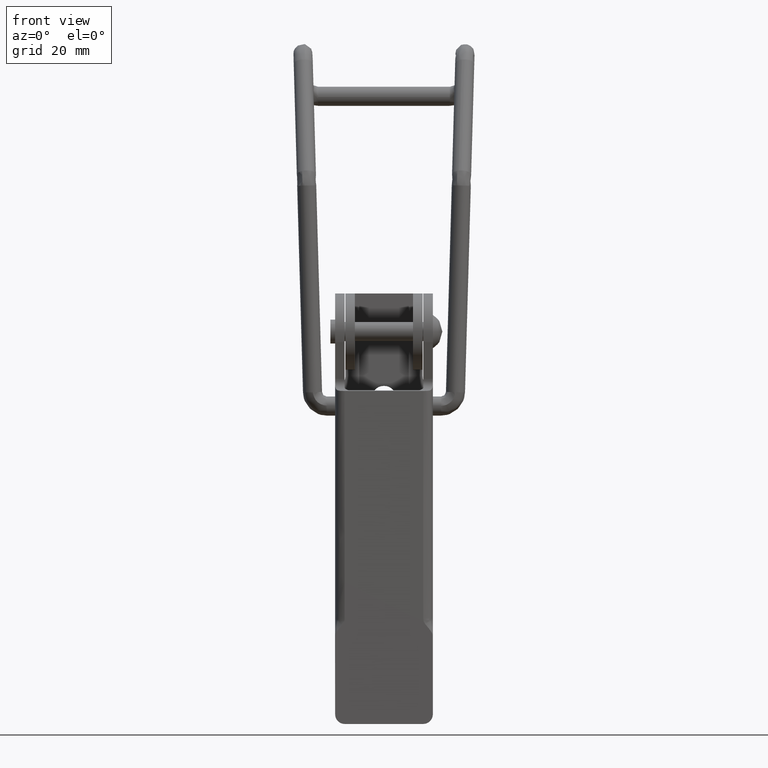
[diagram: clean part render]
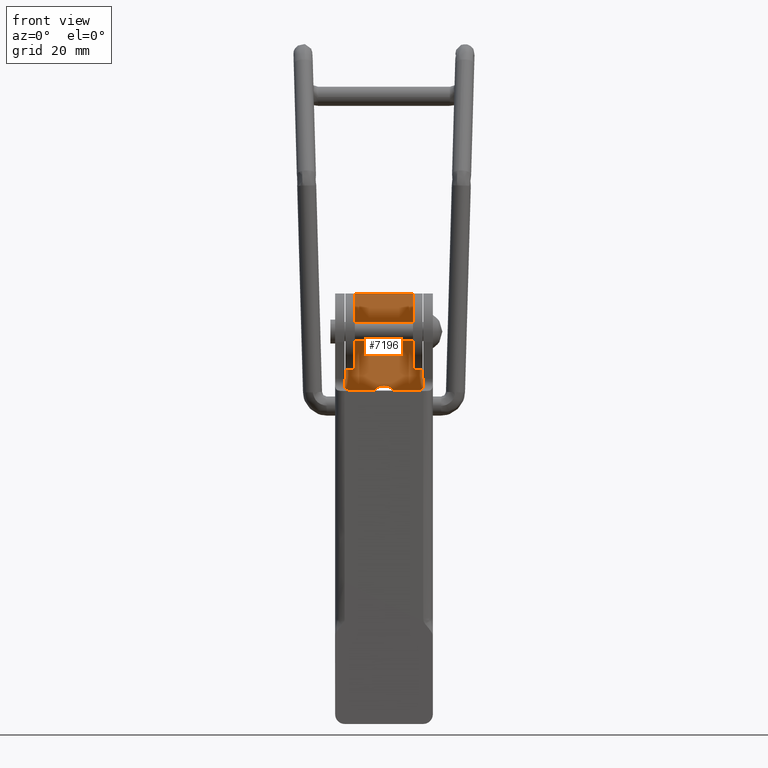
[diagram: same view with one face highlighted and labeled with its STEP entity id]
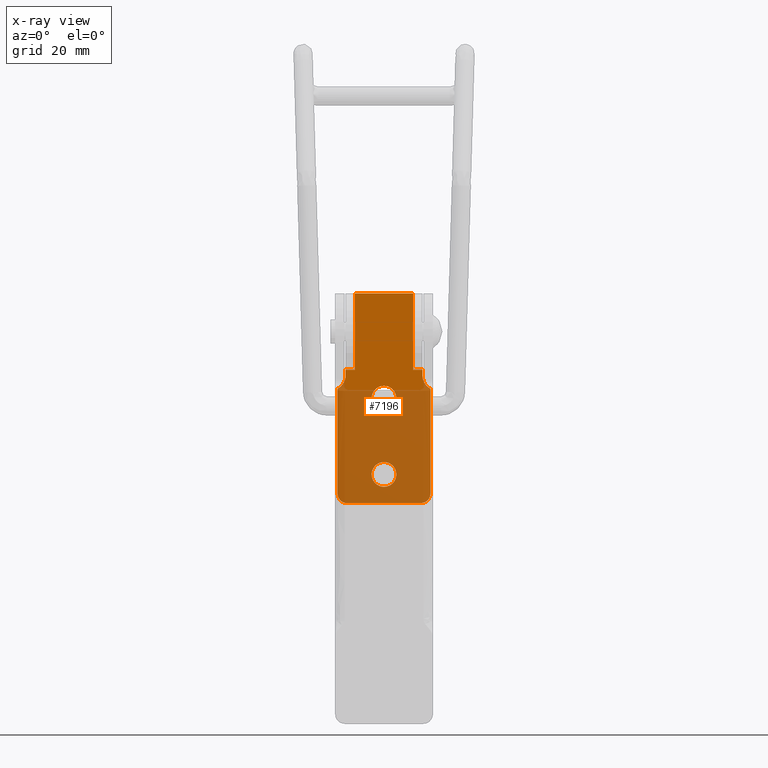
[diagram: x-ray of the same camera — body ghosted, the highlighted face saturated]
A machine part, front view. The second image highlights one B-rep face of the part: STEP entity #7196.
The next image is the same camera in x-ray: the body ghosted, the highlighted face saturated — about 62% of this face is hidden behind the body in this view.
In plain terms, the highlighted face is a freeform B-spline surface patch.
Its self-contained STEP definition (entity closure, byte-faithful):
#6072=CARTESIAN_POINT('',(-1.916921609298874,14.0,-15.756534877141320));
#6073=VERTEX_POINT('',#6072);
#6079=CARTESIAN_POINT('',(0.0,14.0,-16.600000000000001));
#6080=VERTEX_POINT('',#6079);
#6081=CARTESIAN_POINT('',(-1.916921609298874,14.0,-15.756534877141320));
#6082=CARTESIAN_POINT('',(-1.689610343734457,13.999999999999989,-16.005148043264612));
#6083=CARTESIAN_POINT('',(-1.265587290778591,14.000000000000011,-16.316636413627428));
#6084=CARTESIAN_POINT('',(-0.583746367439346,14.0,-16.555262267533578));
#6085=CARTESIAN_POINT('',(-0.202082424154901,14.000000000000020,-16.600042800811771));
#6086=CARTESIAN_POINT('',(0.0,14.0,-16.600000000000001));
#6087=B_SPLINE_CURVE_WITH_KNOTS('',3,(#6081,#6082,#6083,#6084,#6085,#6086),.UNSPECIFIED.,.F.,.U.,(4,1,1,4),(0.000000059354984,1.010421766535306,1.549294810737811,2.155542259876172),.UNSPECIFIED.);
#6088=EDGE_CURVE('',#6073,#6080,#6087,.T.);
#6090=CARTESIAN_POINT('',(2.599999999998803,14.0,-13.999997505267141));
#6091=VERTEX_POINT('',#6090);
#6092=CARTESIAN_POINT('',(0.0,14.0,-16.600000000000001));
#6093=CARTESIAN_POINT('',(0.255260504574793,14.0,-16.600107562600289));
#6094=CARTESIAN_POINT('',(0.765736597733091,14.000000000000011,-16.524242814266369));
#6095=CARTESIAN_POINT('',(1.407176819065144,14.000000000000011,-16.220877018304819));
#6096=CARTESIAN_POINT('',(1.914811565593347,13.999999999999950,-15.793675546172450));
#6097=CARTESIAN_POINT('',(2.233954045594172,14.000000000000099,-15.363325306925139));
#6098=CARTESIAN_POINT('',(2.516713350883857,13.999999999999920,-14.765591247270470));
#6099=CARTESIAN_POINT('',(2.600289461206489,14.000000000000030,-14.319120945527381));
#6100=CARTESIAN_POINT('',(2.599999999998803,14.0,-13.999997505267141));
#6101=B_SPLINE_CURVE_WITH_KNOTS('',3,(#6092,#6093,#6094,#6095,#6096,#6097,#6098,#6099,#6100),.UNSPECIFIED.,.F.,.U.,(4,1,1,1,1,1,4),(0.000000222490631,0.765770364679256,1.531594358759263,2.105872248835109,2.744053226093175,3.126947872563255,4.084174341391743),.UNSPECIFIED.);
#6102=EDGE_CURVE('',#6080,#6091,#6101,.T.);
#6104=CARTESIAN_POINT('',(0.0,14.0,-11.400000000000000));
#6105=VERTEX_POINT('',#6104);
#6106=CARTESIAN_POINT('',(2.599999999998803,14.0,-13.999997505267141));
#6107=CARTESIAN_POINT('',(2.600118072367917,14.0,-13.744735150103089));
#6108=CARTESIAN_POINT('',(2.533632615639389,14.000000000000011,-13.298125982327839));
#6109=CARTESIAN_POINT('',(2.230302110798673,14.0,-12.589865832204580));
#6110=CARTESIAN_POINT('',(1.714999004644092,14.000000000000011,-11.977357324431029));
#6111=CARTESIAN_POINT('',(0.914486913283730,13.999999999999989,-11.511080792653109));
#6112=CARTESIAN_POINT('',(0.319108332114816,14.000000000000011,-11.399721103811810));
#6113=CARTESIAN_POINT('',(0.0,14.0,-11.400000000000000));
#6114=B_SPLINE_CURVE_WITH_KNOTS('',3,(#6106,#6107,#6108,#6109,#6110,#6111,#6112,#6113),.UNSPECIFIED.,.F.,.U.,(4,1,1,1,1,4),(0.000000225905183,0.765769840458974,1.340121590204038,2.297310064581266,3.126945718528811,4.084171529176208),.UNSPECIFIED.);
#6115=EDGE_CURVE('',#6091,#6105,#6114,.T.);
#6117=CARTESIAN_POINT('',(-1.863292082337623,14.0,-12.186677255990370));
#6118=VERTEX_POINT('',#6117);
#6119=CARTESIAN_POINT('',(0.0,14.0,-11.400000000000000));
#6120=CARTESIAN_POINT('',(-0.367951076870633,14.000000000000011,-11.399474163591711));
#6121=CARTESIAN_POINT('',(-1.059901110947333,14.0,-11.549667844470960));
#6122=CARTESIAN_POINT('',(-1.637094240158143,14.000000000000011,-11.953811905486100));
#6123=CARTESIAN_POINT('',(-1.863292082337623,14.0,-12.186677255990370));
#6124=B_SPLINE_CURVE_WITH_KNOTS('',3,(#6119,#6120,#6121,#6122,#6123),.UNSPECIFIED.,.F.,.U.,(4,1,4),(0.000000070766616,1.103614802121159,2.077423678118972),.UNSPECIFIED.);
#6125=EDGE_CURVE('',#6105,#6118,#6124,.T.);
#6161=CARTESIAN_POINT('',(-2.599999999998803,14.0,-14.000002494732890));
#6162=VERTEX_POINT('',#6161);
#6163=CARTESIAN_POINT('',(-1.863292082337623,14.0,-12.186677255990370));
#6164=CARTESIAN_POINT('',(-2.111504967574053,14.000000000000041,-12.441072610308421));
#6165=CARTESIAN_POINT('',(-2.477423360324878,13.999999999999931,-13.017738418382930));
#6166=CARTESIAN_POINT('',(-2.600265949644493,14.000000000000050,-13.686412500213580));
#6167=CARTESIAN_POINT('',(-2.599999999998803,14.0,-14.000002494732890));
#6168=B_SPLINE_CURVE_WITH_KNOTS('',3,(#6163,#6164,#6165,#6166,#6167),.UNSPECIFIED.,.F.,.U.,(4,1,4),(0.000000059649321,1.066071734440389,2.006751353441346),.UNSPECIFIED.);
#6169=EDGE_CURVE('',#6118,#6162,#6168,.T.);
#6171=CARTESIAN_POINT('',(-2.599999999998803,14.0,-14.000002494732890));
#6172=CARTESIAN_POINT('',(-2.600077775424272,13.999999999999970,-14.241082618886869));
#6173=CARTESIAN_POINT('',(-2.535292253647023,14.000000000000030,-14.703101945881160));
#6174=CARTESIAN_POINT('',(-2.279520161677466,14.000000000000011,-15.298596059698580));
#6175=CARTESIAN_POINT('',(-2.039087111035782,13.999999999999989,-15.623245612946921));
#6176=CARTESIAN_POINT('',(-1.916921609298874,14.0,-15.756534877141320));
#6177=B_SPLINE_CURVE_WITH_KNOTS('',3,(#6171,#6172,#6173,#6174,#6175,#6176),.UNSPECIFIED.,.F.,.U.,(4,1,1,4),(0.000000065977464,0.723236517900857,1.386200415809939,1.928629615929876),.UNSPECIFIED.);
#6178=EDGE_CURVE('',#6162,#6073,#6177,.T.);
#6270=CARTESIAN_POINT('',(-1.916921609298870,14.0,-31.756534877141309));
#6271=VERTEX_POINT('',#6270);
#6277=CARTESIAN_POINT('',(0.0,14.0,-32.599999999999987));
#6278=VERTEX_POINT('',#6277);
#6279=CARTESIAN_POINT('',(-1.916921609298870,14.0,-31.756534877141309));
#6280=CARTESIAN_POINT('',(-1.689609798237721,14.0,-32.005124660599058));
#6281=CARTESIAN_POINT('',(-1.099675840970816,14.000000000000041,-32.438639371524637));
#6282=CARTESIAN_POINT('',(-0.381811198589329,13.999999999999950,-32.600630317086448));
#6283=CARTESIAN_POINT('',(0.0,14.0,-32.599999999999987));
#6284=B_SPLINE_CURVE_WITH_KNOTS('',3,(#6279,#6280,#6281,#6282,#6283),.UNSPECIFIED.,.F.,.U.,(4,1,4),(0.000000059354732,1.010421766535268,2.155542259876168),.UNSPECIFIED.);
#6285=EDGE_CURVE('',#6271,#6278,#6284,.T.);
#6287=CARTESIAN_POINT('',(2.599999999998803,14.0,-29.999997505267139));
#6288=VERTEX_POINT('',#6287);
#6289=CARTESIAN_POINT('',(0.0,14.0,-32.599999999999987));
#6290=CARTESIAN_POINT('',(0.212711121391209,13.999999999999980,-32.600044232026569));
#6291=CARTESIAN_POINT('',(0.659404019229375,14.000000000000030,-32.544912847323658));
#6292=CARTESIAN_POINT('',(1.237403992630267,13.999999999999980,-32.313777561479192));
#6293=CARTESIAN_POINT('',(1.726694355211222,14.000000000000011,-31.969123580949290));
#6294=CARTESIAN_POINT('',(2.076254360498445,13.999999999999931,-31.592808801647791));
#6295=CARTESIAN_POINT('',(2.345041954147316,14.000000000000190,-31.156587710635659));
#6296=CARTESIAN_POINT('',(2.545054873891584,13.999999999999650,-30.638096477756839));
#6297=CARTESIAN_POINT('',(2.600085235598895,14.000000000000361,-30.233992575471468));
#6298=CARTESIAN_POINT('',(2.599999999998803,14.0,-29.999997505267139));
#6299=B_SPLINE_CURVE_WITH_KNOTS('',3,(#6289,#6290,#6291,#6292,#6293,#6294,#6295,#6296,#6297,#6298),.UNSPECIFIED.,.F.,.U.,(4,1,1,1,1,1,1,4),(0.000000222491401,0.638146177787613,1.340122511664661,1.850688000295570,2.424969606976797,2.871673900947134,3.382208397628389,4.084174341391741),.UNSPECIFIED.);
#6300=EDGE_CURVE('',#6278,#6288,#6299,.T.);
#6302=CARTESIAN_POINT('',(0.0,14.0,-27.399999999999999));
#6303=VERTEX_POINT('',#6302);
#6304=CARTESIAN_POINT('',(2.599999999998803,14.0,-29.999997505267139));
#6305=CARTESIAN_POINT('',(2.600239216511195,14.000000000000011,-29.680898043953611));
#6306=CARTESIAN_POINT('',(2.485051257334196,14.000000000000011,-29.064196701574719));
#6307=CARTESIAN_POINT('',(2.041170598641215,14.000000000000011,-28.323540923506162));
#6308=CARTESIAN_POINT('',(1.494266484888802,14.000000000000020,-27.840232745146171));
#6309=CARTESIAN_POINT('',(0.829399043039624,13.999999999999970,-27.495227149844439));
#6310=CARTESIAN_POINT('',(0.319117934879101,14.000000000000050,-27.399708686725809));
#6311=CARTESIAN_POINT('',(0.0,14.0,-27.399999999999999));
#6312=B_SPLINE_CURVE_WITH_KNOTS('',3,(#6304,#6305,#6306,#6307,#6308,#6309,#6310,#6311),.UNSPECIFIED.,.F.,.U.,(4,1,1,1,1,4),(0.000000225904554,0.957227126624389,1.850686728796987,2.552577797868289,3.126945718528598,4.084171529176224),.UNSPECIFIED.);
#6313=EDGE_CURVE('',#6288,#6303,#6312,.T.);
#6315=CARTESIAN_POINT('',(-1.863292082337623,14.0,-28.186677255990372));
#6316=VERTEX_POINT('',#6315);
#6317=CARTESIAN_POINT('',(0.0,14.0,-27.399999999999999));
#6318=CARTESIAN_POINT('',(-0.367949689996573,14.000000000000011,-27.399476440245881));
#6319=CARTESIAN_POINT('',(-1.059902554003706,13.999999999999989,-27.549665303794949));
#6320=CARTESIAN_POINT('',(-1.637093903205718,14.000000000000030,-27.953812590948271));
#6321=CARTESIAN_POINT('',(-1.863292082337623,14.0,-28.186677255990372));
#6322=B_SPLINE_CURVE_WITH_KNOTS('',3,(#6317,#6318,#6319,#6320,#6321),.UNSPECIFIED.,.F.,.U.,(4,1,4),(0.000000070766543,1.103614802121137,2.077423678118962),.UNSPECIFIED.);
#6323=EDGE_CURVE('',#6303,#6316,#6322,.T.);
#6358=CARTESIAN_POINT('',(-2.599999999998803,14.0,-30.000002494732879));
#6359=VERTEX_POINT('',#6358);
#6360=CARTESIAN_POINT('',(-1.863292082337623,14.0,-28.186677255990372));
#6361=CARTESIAN_POINT('',(-2.082177799637003,14.000000000000011,-28.411230583992079));
#6362=CARTESIAN_POINT('',(-2.460563037955711,14.0,-28.976089833091670));
#6363=CARTESIAN_POINT('',(-2.600411757396618,14.0,-29.644589328928038));
#6364=CARTESIAN_POINT('',(-2.599999999998803,14.0,-30.000002494732879));
#6365=B_SPLINE_CURVE_WITH_KNOTS('',3,(#6360,#6361,#6362,#6363,#6364),.UNSPECIFIED.,.F.,.U.,(4,1,4),(0.000000059649497,0.940679678645219,2.006751353441342),.UNSPECIFIED.);
#6366=EDGE_CURVE('',#6316,#6359,#6365,.T.);
#6368=CARTESIAN_POINT('',(-2.599999999998803,14.0,-30.000002494732879));
#6369=CARTESIAN_POINT('',(-2.600096937250997,14.000000000000011,-30.261168115092381));
#6370=CARTESIAN_POINT('',(-2.502365256549834,13.999999999999970,-30.904013066873581));
#6371=CARTESIAN_POINT('',(-2.175338646068631,14.000000000000041,-31.475445029748130));
#6372=CARTESIAN_POINT('',(-1.916921609298870,14.0,-31.756534877141309));
#6373=B_SPLINE_CURVE_WITH_KNOTS('',3,(#6368,#6369,#6370,#6371,#6372),.UNSPECIFIED.,.F.,.U.,(4,1,4),(0.000000065977643,0.783518995266649,1.928629615929879),.UNSPECIFIED.);
#6374=EDGE_CURVE('',#6359,#6271,#6373,.T.);
#6631=CARTESIAN_POINT('',(-6.100000000000001,14.0,-8.0));
#6632=VERTEX_POINT('',#6631);
#6633=CARTESIAN_POINT('',(-8.100000000000000,14.0,-8.0));
#6634=VERTEX_POINT('',#6633);
#6635=CARTESIAN_POINT('',(-6.100000000000001,14.0,-8.0));
#6636=CARTESIAN_POINT('',(-8.100000000000000,14.0,-8.0));
#6637=QUASI_UNIFORM_CURVE('',1,(#6635,#6636),.UNSPECIFIED.,.F.,.U.);
#6638=EDGE_CURVE('',#6632,#6634,#6637,.T.);
#6758=CARTESIAN_POINT('',(8.099999999999911,14.0,-8.0));
#6759=VERTEX_POINT('',#6758);
#6760=CARTESIAN_POINT('',(6.100000000000001,14.0,-8.0));
#6761=VERTEX_POINT('',#6760);
#6762=CARTESIAN_POINT('',(8.099999999999911,14.0,-8.0));
#6763=CARTESIAN_POINT('',(6.100000000000001,14.0,-8.0));
#6764=QUASI_UNIFORM_CURVE('',1,(#6762,#6763),.UNSPECIFIED.,.F.,.U.);
#6765=EDGE_CURVE('',#6759,#6761,#6764,.T.);
#6888=CARTESIAN_POINT('',(7.750000000000000,14.0,-36.0));
#6889=VERTEX_POINT('',#6888);
#6895=CARTESIAN_POINT('',(-7.750000000000170,14.0,-36.0));
#6896=VERTEX_POINT('',#6895);
#6897=CARTESIAN_POINT('',(-7.750000000000170,14.0,-36.0));
#6898=CARTESIAN_POINT('',(7.750000000000000,14.0,-36.0));
#6899=QUASI_UNIFORM_CURVE('',1,(#6897,#6898),.UNSPECIFIED.,.F.,.U.);
#6900=EDGE_CURVE('',#6896,#6889,#6899,.T.);
#6926=CARTESIAN_POINT('',(-9.750000000000171,14.0,-34.0));
#6927=VERTEX_POINT('',#6926);
#6928=CARTESIAN_POINT('',(-9.750000000000171,14.0,-34.0));
#6929=CARTESIAN_POINT('',(-9.750079602878060,14.0,-34.196352275710566));
#6930=CARTESIAN_POINT('',(-9.698982965946767,13.999999999999989,-34.539915227011228));
#6931=CARTESIAN_POINT('',(-9.484950507914514,14.000000000000011,-35.039228440659862));
#6932=CARTESIAN_POINT('',(-9.118758918695958,14.000000000000011,-35.508836328289782));
#6933=CARTESIAN_POINT('',(-8.518882621668228,14.000000000000011,-35.898962384043912));
#6934=CARTESIAN_POINT('',(-8.011842246264630,14.000000000000011,-36.000281573309309));
#6935=CARTESIAN_POINT('',(-7.750000000000170,14.0,-36.0));
#6936=B_SPLINE_CURVE_WITH_KNOTS('',3,(#6928,#6929,#6930,#6931,#6932,#6933,#6934,#6935),.UNSPECIFIED.,.F.,.U.,(4,1,1,1,1,4),(0.000000287143590,0.589049661664303,1.030861965920176,1.619883375362168,2.356253692939252,3.141671488698338),.UNSPECIFIED.);
#6937=EDGE_CURVE('',#6927,#6896,#6936,.T.);
#6954=CARTESIAN_POINT('',(-9.750000000000171,14.0,-12.000085664923800));
#6955=VERTEX_POINT('',#6954);
#6956=CARTESIAN_POINT('',(-9.750000000000171,14.0,-12.000085664923800));
#6957=CARTESIAN_POINT('',(-9.750000000000171,14.0,-34.0));
#6958=QUASI_UNIFORM_CURVE('',1,(#6956,#6957),.UNSPECIFIED.,.F.,.U.);
#6959=EDGE_CURVE('',#6955,#6927,#6958,.T.);
#6985=CARTESIAN_POINT('',(-8.100000000000000,14.0,-9.321000000000000));
#6986=VERTEX_POINT('',#6985);
#6987=CARTESIAN_POINT('',(-9.750000000000171,14.0,-12.000085664923800));
#6988=CARTESIAN_POINT('',(-9.518892924503296,14.000000000000011,-11.883697314427801));
#6989=CARTESIAN_POINT('',(-9.072686008283728,14.000000000000011,-11.580858742119659));
#6990=CARTESIAN_POINT('',(-8.540769227079633,14.000000000000011,-10.958736108178890));
#6991=CARTESIAN_POINT('',(-8.184130691264384,13.999999999999970,-10.183443341774730));
#6992=CARTESIAN_POINT('',(-8.099887192563280,14.000000000000050,-9.614273721116055));
#6993=CARTESIAN_POINT('',(-8.100000000000000,14.0,-9.321000000000000));
#6994=B_SPLINE_CURVE_WITH_KNOTS('',3,(#6987,#6988,#6989,#6990,#6991,#6992,#6993),.UNSPECIFIED.,.F.,.U.,(4,1,1,1,4),(0.000000114448359,0.776281004763938,1.604348058404431,2.432346413536320,3.312134025714054),.UNSPECIFIED.);
#6995=EDGE_CURVE('',#6955,#6986,#6994,.T.);
#7018=CARTESIAN_POINT('',(-6.100000000000001,14.0,8.0));
#7019=VERTEX_POINT('',#7018);
#7025=CARTESIAN_POINT('',(6.100000000000001,14.0,8.0));
#7026=VERTEX_POINT('',#7025);
#7027=CARTESIAN_POINT('',(6.100000000000001,14.0,8.0));
#7028=CARTESIAN_POINT('',(-6.100000000000001,14.0,8.0));
#7029=QUASI_UNIFORM_CURVE('',1,(#7027,#7028),.UNSPECIFIED.,.F.,.U.);
#7030=EDGE_CURVE('',#7026,#7019,#7029,.T.);
#7062=CARTESIAN_POINT('',(8.099999999999911,14.0,-9.321000000000000));
#7063=VERTEX_POINT('',#7062);
#7069=CARTESIAN_POINT('',(9.750000000000000,14.0,-12.000085664923800));
#7070=VERTEX_POINT('',#7069);
#7071=CARTESIAN_POINT('',(8.099999999999911,14.0,-9.321000000000000));
#7072=CARTESIAN_POINT('',(8.099530299359431,13.999999999999989,-9.735101702359028));
#7073=CARTESIAN_POINT('',(8.234236941927454,14.0,-10.372940495755509));
#7074=CARTESIAN_POINT('',(8.626791279191330,14.000000000000011,-11.048377946111721));
#7075=CARTESIAN_POINT('',(9.076173979186818,13.999999999999980,-11.574165145379720));
#7076=CARTESIAN_POINT('',(9.457161589481167,14.000000000000041,-11.852781325036521));
#7077=CARTESIAN_POINT('',(9.750000000000000,14.0,-12.000085664923800));
#7078=B_SPLINE_CURVE_WITH_KNOTS('',3,(#7071,#7072,#7073,#7074,#7075,#7076,#7077),.UNSPECIFIED.,.F.,.U.,(4,1,1,1,4),(0.000000114447609,1.242056879479332,1.914814261893066,2.328841168037018,3.312134025713957),.UNSPECIFIED.);
#7079=EDGE_CURVE('',#7063,#7070,#7078,.T.);
#7096=CARTESIAN_POINT('',(9.750000000000000,14.0,-34.0));
#7097=VERTEX_POINT('',#7096);
#7098=CARTESIAN_POINT('',(9.750000000000000,14.0,-34.0));
#7099=CARTESIAN_POINT('',(9.750000000000000,14.0,-12.000085664923800));
#7100=QUASI_UNIFORM_CURVE('',1,(#7098,#7099),.UNSPECIFIED.,.F.,.U.);
#7101=EDGE_CURVE('',#7097,#7070,#7100,.T.);
#7127=CARTESIAN_POINT('',(7.750000000000000,14.0,-36.0));
#7128=CARTESIAN_POINT('',(7.946351897636281,14.000000000000011,-36.000081035673027));
#7129=CARTESIAN_POINT('',(8.289918863235330,14.0,-35.948981531017971));
#7130=CARTESIAN_POINT('',(8.758989589690092,13.999999999999959,-35.747904141506723));
#7131=CARTESIAN_POINT('',(9.143011934179297,14.000000000000099,-35.463117213144102));
#7132=CARTESIAN_POINT('',(9.446294307359313,13.999999999999879,-35.093529715677491));
#7133=CARTESIAN_POINT('',(9.684586479845295,14.000000000000060,-34.605318465956827));
#7134=CARTESIAN_POINT('',(9.750172670594484,13.999999999999980,-34.229099708619202));
#7135=CARTESIAN_POINT('',(9.750000000000000,14.0,-34.0));
#7136=B_SPLINE_CURVE_WITH_KNOTS('',3,(#7127,#7128,#7129,#7130,#7131,#7132,#7133,#7134,#7135),.UNSPECIFIED.,.F.,.U.,(4,1,1,1,1,1,4),(0.000000287145164,0.589049661665388,1.030861965920980,1.521787399406754,2.012607652304844,2.454432787567200,3.141671488698328),.UNSPECIFIED.);
#7137=EDGE_CURVE('',#6889,#7097,#7136,.T.);
#7143=CARTESIAN_POINT('',(-10.724024962205389,14.0,10.197799914719470));
#7144=CARTESIAN_POINT('',(10.724025485235980,14.0,10.197799914719470));
#7145=CARTESIAN_POINT('',(-10.724024962205389,14.0,-38.197801094891432));
#7146=CARTESIAN_POINT('',(10.724025485235980,14.0,-38.197801094891432));
#7147=B_SPLINE_SURFACE_WITH_KNOTS('',1,1,((#7143,#7145),(#7144,#7146)),.UNSPECIFIED.,.F.,.F.,.U.,(2,2),(2,2),(0.0,21.448050447441378),(0.0,48.395601009610893),.UNSPECIFIED.);
#7148=CARTESIAN_POINT('',(-6.100000000000001,14.0,8.0));
#7149=CARTESIAN_POINT('',(-6.100000000000001,14.0,-8.0));
#7150=QUASI_UNIFORM_CURVE('',1,(#7148,#7149),.UNSPECIFIED.,.F.,.U.);
#7151=EDGE_CURVE('',#7019,#6632,#7150,.T.);
#7152=ORIENTED_EDGE('',*,*,#7151,.T.);
#7153=ORIENTED_EDGE('',*,*,#6638,.T.);
#7154=CARTESIAN_POINT('',(-8.100000000000000,14.0,-8.0));
#7155=CARTESIAN_POINT('',(-8.100000000000000,14.0,-9.321000000000000));
#7156=QUASI_UNIFORM_CURVE('',1,(#7154,#7155),.UNSPECIFIED.,.F.,.U.);
#7157=EDGE_CURVE('',#6634,#6986,#7156,.T.);
#7158=ORIENTED_EDGE('',*,*,#7157,.T.);
#7159=ORIENTED_EDGE('',*,*,#6995,.F.);
#7160=ORIENTED_EDGE('',*,*,#6959,.T.);
#7161=ORIENTED_EDGE('',*,*,#6937,.T.);
#7162=ORIENTED_EDGE('',*,*,#6900,.T.);
#7163=ORIENTED_EDGE('',*,*,#7137,.T.);
#7164=ORIENTED_EDGE('',*,*,#7101,.T.);
#7165=ORIENTED_EDGE('',*,*,#7079,.F.);
#7166=CARTESIAN_POINT('',(8.099999999999911,14.0,-9.321000000000000));
#7167=CARTESIAN_POINT('',(8.099999999999911,14.0,-8.0));
#7168=QUASI_UNIFORM_CURVE('',1,(#7166,#7167),.UNSPECIFIED.,.F.,.U.);
#7169=EDGE_CURVE('',#7063,#6759,#7168,.T.);
#7170=ORIENTED_EDGE('',*,*,#7169,.T.);
#7171=ORIENTED_EDGE('',*,*,#6765,.T.);
#7172=CARTESIAN_POINT('',(6.100000000000001,14.0,-8.0));
#7173=CARTESIAN_POINT('',(6.100000000000001,14.0,8.0));
#7174=QUASI_UNIFORM_CURVE('',1,(#7172,#7173),.UNSPECIFIED.,.F.,.U.);
#7175=EDGE_CURVE('',#6761,#7026,#7174,.T.);
#7176=ORIENTED_EDGE('',*,*,#7175,.T.);
#7177=ORIENTED_EDGE('',*,*,#7030,.T.);
#7178=EDGE_LOOP('',(#7152,#7153,#7158,#7159,#7160,#7161,#7162,#7163,#7164,#7165,#7170,#7171,#7176,#7177));
#7179=FACE_OUTER_BOUND('',#7178,.T.);
#7180=ORIENTED_EDGE('',*,*,#6300,.F.);
#7181=ORIENTED_EDGE('',*,*,#6285,.F.);
#7182=ORIENTED_EDGE('',*,*,#6374,.F.);
#7183=ORIENTED_EDGE('',*,*,#6366,.F.);
#7184=ORIENTED_EDGE('',*,*,#6323,.F.);
#7185=ORIENTED_EDGE('',*,*,#6313,.F.);
#7186=EDGE_LOOP('',(#7180,#7181,#7182,#7183,#7184,#7185));
#7187=FACE_BOUND('',#7186,.T.);
#7188=ORIENTED_EDGE('',*,*,#6102,.F.);
#7189=ORIENTED_EDGE('',*,*,#6088,.F.);
#7190=ORIENTED_EDGE('',*,*,#6178,.F.);
#7191=ORIENTED_EDGE('',*,*,#6169,.F.);
#7192=ORIENTED_EDGE('',*,*,#6125,.F.);
#7193=ORIENTED_EDGE('',*,*,#6115,.F.);
#7194=EDGE_LOOP('',(#7188,#7189,#7190,#7191,#7192,#7193));
#7195=FACE_BOUND('',#7194,.T.);
#7196=ADVANCED_FACE('',(#7179,#7187,#7195),#7147,.F.);